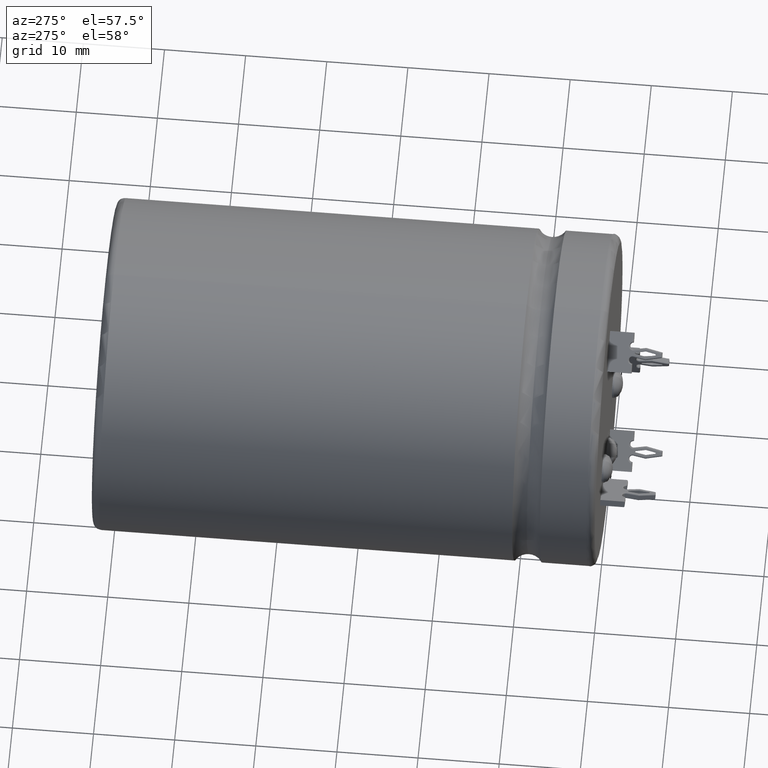
[diagram: clean part render]
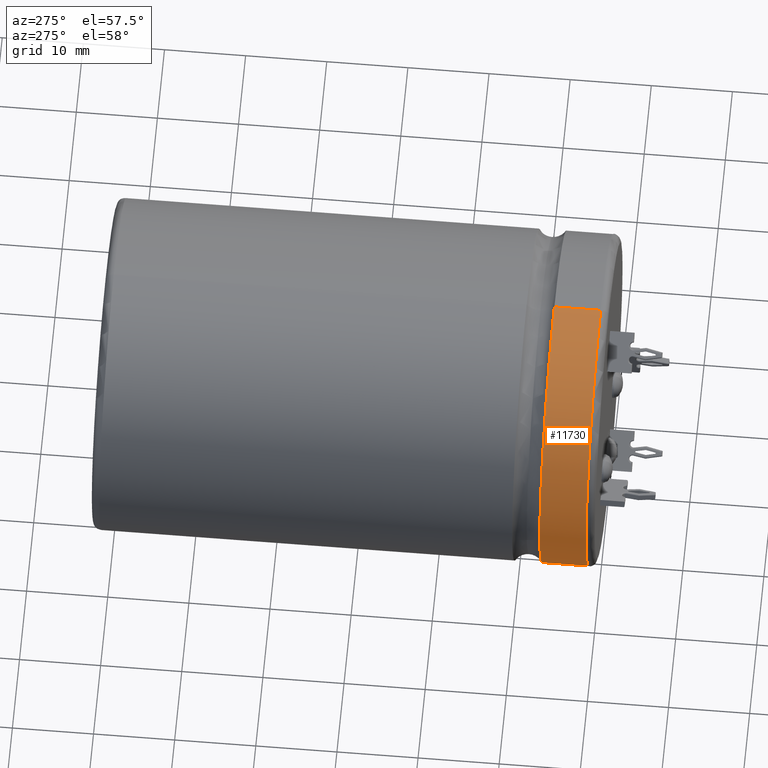
[diagram: same view with one face highlighted and labeled with its STEP entity id]
A machine part, auxiliary view. The second image highlights one B-rep face of the part: STEP entity #11730.
In plain terms, the highlighted cylindrical surface (partial cylindrical patch) has radius 20.5 mm, axis along (-0, -1, -0).
Its self-contained STEP definition (entity closure, byte-faithful):
#1099 = CYLINDRICAL_SURFACE ( 'NONE', #13463, 20.50000000000000000 ) ;
#1206 = DIRECTION ( 'NONE',  ( 0.0000000000000000000, 0.0000000000000000000, -1.000000000000000000 ) ) ;
#1343 = DIRECTION ( 'NONE',  ( 0.0000000000000000000, 1.000000000000000000, 0.0000000000000000000 ) ) ;
#1575 = EDGE_LOOP ( 'NONE', ( #5752, #2959, #13333, #4983 ) ) ;
#1971 = AXIS2_PLACEMENT_3D ( 'NONE', #7673, #6507, #1206 ) ;
#2100 = CARTESIAN_POINT ( 'NONE',  ( 0.0000000000000000000, 6.702200000000028800, -20.50000000000000400 ) ) ;
#2311 = CARTESIAN_POINT ( 'NONE',  ( 0.0000000000000000000, 1.000000000000000900, 0.0000000000000000000 ) ) ;
#2620 = CIRCLE ( 'NONE', #3300, 20.50000000000000000 ) ;
#2684 = VECTOR ( 'NONE', #4761, 1000.000000000000000 ) ;
#2959 = ORIENTED_EDGE ( 'NONE', *, *, #13773, .T. ) ;
#3300 = AXIS2_PLACEMENT_3D ( 'NONE', #2311, #1343, #12168 ) ;
#3485 = FACE_OUTER_BOUND ( 'NONE', #1575, .T. ) ;
#4070 = CARTESIAN_POINT ( 'NONE',  ( 2.510525938252074500E-015, 1.000000000000000900, 20.50000000000000000 ) ) ;
#4761 = DIRECTION ( 'NONE',  ( -0.0000000000000000000, -1.000000000000000000, -0.0000000000000000000 ) ) ;
#4983 = ORIENTED_EDGE ( 'NONE', *, *, #12325, .T. ) ;
#5088 = LINE ( 'NONE', #9190, #12631 ) ;
#5752 = ORIENTED_EDGE ( 'NONE', *, *, #8103, .F. ) ;
#5944 = CARTESIAN_POINT ( 'NONE',  ( 2.510525938252074500E-015, 62.00000000000000000, 20.50000000000000000 ) ) ;
#6507 = DIRECTION ( 'NONE',  ( -0.0000000000000000000, -1.000000000000000000, -0.0000000000000000000 ) ) ;
#6688 = VERTEX_POINT ( 'NONE', #13953 ) ;
#7673 = CARTESIAN_POINT ( 'NONE',  ( 0.0000000000000000000, 6.702200000000028800, 0.0000000000000000000 ) ) ;
#7691 = EDGE_CURVE ( 'NONE', #8316, #9263, #5088, .T. ) ;
#8103 = EDGE_CURVE ( 'NONE', #6688, #12116, #11250, .T. ) ;
#8316 = VERTEX_POINT ( 'NONE', #2100 ) ;
#8415 = DIRECTION ( 'NONE',  ( -0.0000000000000000000, -1.000000000000000000, -0.0000000000000000000 ) ) ;
#8987 = CIRCLE ( 'NONE', #1971, 20.50000000000000400 ) ;
#9190 = CARTESIAN_POINT ( 'NONE',  ( 0.0000000000000000000, 62.00000000000000000, -20.50000000000000000 ) ) ;
#9263 = VERTEX_POINT ( 'NONE', #9566 ) ;
#9566 = CARTESIAN_POINT ( 'NONE',  ( 0.0000000000000000000, 1.000000000000000900, -20.50000000000000000 ) ) ;
#10651 = DIRECTION ( 'NONE',  ( 0.0000000000000000000, 0.0000000000000000000, -1.000000000000000000 ) ) ;
#11250 = LINE ( 'NONE', #5944, #2684 ) ;
#11577 = DIRECTION ( 'NONE',  ( -0.0000000000000000000, -1.000000000000000000, -0.0000000000000000000 ) ) ;
#11730 = ADVANCED_FACE ( 'NONE', ( #3485 ), #1099, .T. ) ;
#12116 = VERTEX_POINT ( 'NONE', #4070 ) ;
#12168 = DIRECTION ( 'NONE',  ( 0.0000000000000000000, 0.0000000000000000000, 1.000000000000000000 ) ) ;
#12325 = EDGE_CURVE ( 'NONE', #9263, #12116, #2620, .T. ) ;
#12631 = VECTOR ( 'NONE', #11577, 1000.000000000000000 ) ;
#13333 = ORIENTED_EDGE ( 'NONE', *, *, #7691, .T. ) ;
#13463 = AXIS2_PLACEMENT_3D ( 'NONE', #13800, #8415, #10651 ) ;
#13773 = EDGE_CURVE ( 'NONE', #6688, #8316, #8987, .T. ) ;
#13800 = CARTESIAN_POINT ( 'NONE',  ( 0.0000000000000000000, 62.00000000000000000, 0.0000000000000000000 ) ) ;
#13953 = CARTESIAN_POINT ( 'NONE',  ( 2.510525938252074500E-015, 6.702200000000028800, 20.50000000000000400 ) ) ;